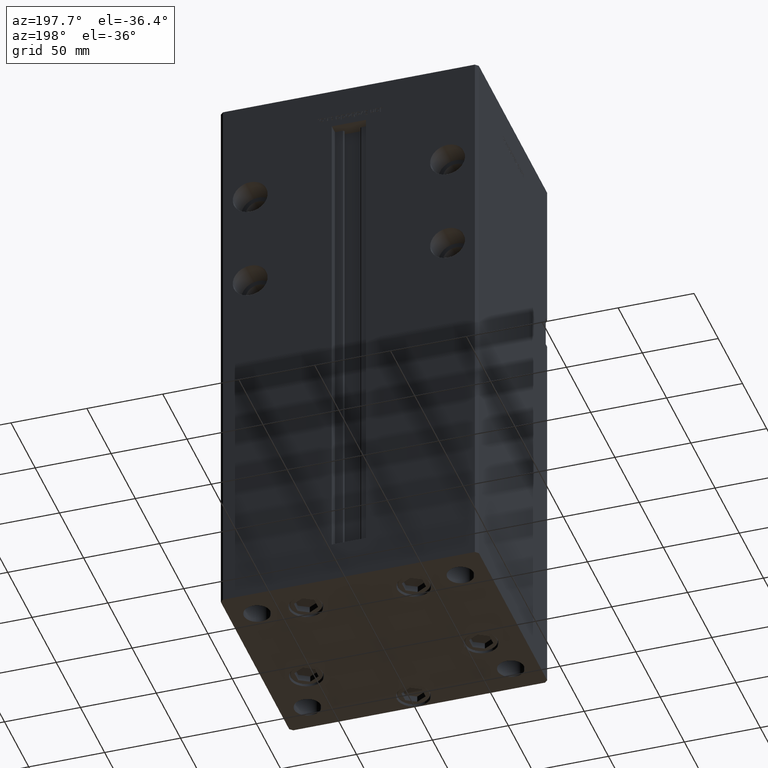
[diagram: clean part render]
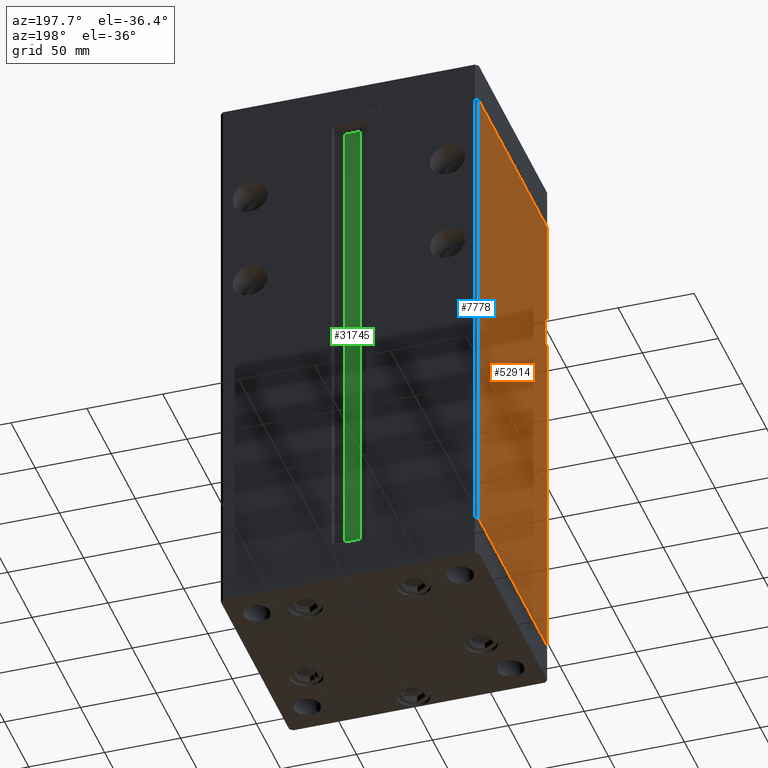
[diagram: same view with three faces highlighted in distinct colors, each labeled with its STEP entity id]
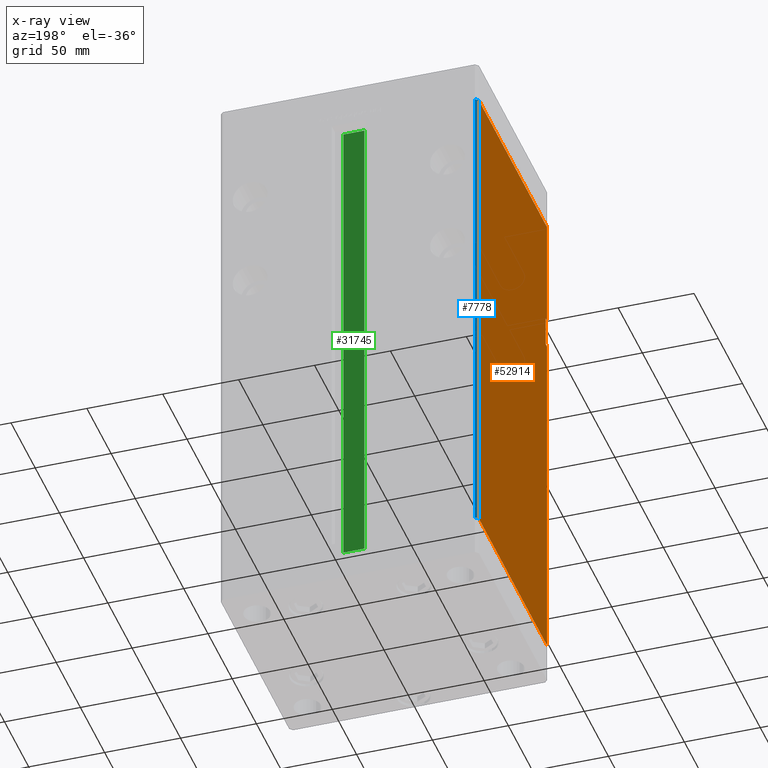
[diagram: x-ray of the same camera — body ghosted, the three highlighted faces saturated]
A machine part, auxiliary view with three faces highlighted in distinct colors.
The next image is the same camera in x-ray (body ghosted, the three faces saturated) — at least one of them is partly hidden behind the body in this view.
Their STEP definitions:

[orange] entity #52914 — the highlighted planar face has unit normal (1, 0, 0).
#284 = AXIS2_PLACEMENT_3D ( 'NONE', #33615, #25036, #29597 ) ;
#876 = FACE_OUTER_BOUND ( 'NONE', #17941, .T. ) ;
#911 = DIRECTION ( 'NONE',  ( 0.000000000000000000, 0.000000000000000000, -1.000000000000000000 ) ) ;
#956 = VECTOR ( 'NONE', #24842, 1000.000000000000000 ) ;
#1773 = ORIENTED_EDGE ( 'NONE', *, *, #51533, .F. ) ;
#1885 = CARTESIAN_POINT ( 'NONE',  ( -84.99999999999998579, -67.50000000000000000, 232.9999999999999716 ) ) ;
#1942 = ORIENTED_EDGE ( 'NONE', *, *, #13674, .F. ) ;
#2013 = EDGE_CURVE ( 'NONE', #45880, #40210, #29131, .T. ) ;
#2338 = EDGE_CURVE ( 'NONE', #6480, #29112, #49220, .T. ) ;
#3523 = CARTESIAN_POINT ( 'NONE',  ( -84.99999999999998579, -67.50000000000000000, 253.0000000000000000 ) ) ;
#4436 = CARTESIAN_POINT ( 'NONE',  ( -85.00000000000001421, 70.50000000000000000, 326.0000000000000000 ) ) ;
#4654 = CARTESIAN_POINT ( 'NONE',  ( -85.00000000000001421, 70.50000000000000000, 0.000000000000000000 ) ) ;
#5424 = PLANE ( 'NONE',  #284 ) ;
#5912 = VECTOR ( 'NONE', #29881, 1000.000000000000000 ) ;
#6480 = VERTEX_POINT ( 'NONE', #1885 ) ;
#6510 = CARTESIAN_POINT ( 'NONE',  ( -84.99999999999998579, -70.50000000000000000, 232.9999999999999716 ) ) ;
#7385 = CARTESIAN_POINT ( 'NONE',  ( -84.99999999999998579, -70.50000000000000000, 326.0000000000000000 ) ) ;
#9039 = VECTOR ( 'NONE', #52238, 1000.000000000000000 ) ;
#11453 = LINE ( 'NONE', #40470, #18377 ) ;
#11721 = EDGE_CURVE ( 'NONE', #35138, #44899, #11453, .T. ) ;
#13674 = EDGE_CURVE ( 'NONE', #17195, #6480, #27030, .T. ) ;
#13906 = ORIENTED_EDGE ( 'NONE', *, *, #11721, .F. ) ;
#15661 = EDGE_CURVE ( 'NONE', #29112, #34831, #43937, .T. ) ;
#16862 = LINE ( 'NONE', #22707, #30017 ) ;
#16981 = LINE ( 'NONE', #4654, #5912 ) ;
#17195 = VERTEX_POINT ( 'NONE', #3523 ) ;
#17941 = EDGE_LOOP ( 'NONE', ( #35677, #36464, #1942, #21518, #13906, #1773, #43120, #19599 ) ) ;
#18377 = VECTOR ( 'NONE', #48525, 1000.000000000000000 ) ;
#18807 = CARTESIAN_POINT ( 'NONE',  ( -84.99999999999998579, -70.50000000000000000, 326.0000000000000000 ) ) ;
#19599 = ORIENTED_EDGE ( 'NONE', *, *, #28961, .T. ) ;
#21037 = CARTESIAN_POINT ( 'NONE',  ( -84.99999999999998579, -67.50000000000000000, 253.0000000000000000 ) ) ;
#21518 = ORIENTED_EDGE ( 'NONE', *, *, #40668, .T. ) ;
#22707 = CARTESIAN_POINT ( 'NONE',  ( -84.99999999999998579, -67.50000000000000000, 253.0000000000000000 ) ) ;
#24842 = DIRECTION ( 'NONE',  ( -0.000000000000000000, -0.000000000000000000, -1.000000000000000000 ) ) ;
#25036 = DIRECTION ( 'NONE',  ( 1.000000000000000000, 1.968480540115525910E-16, -0.000000000000000000 ) ) ;
#26682 = VECTOR ( 'NONE', #40637, 1000.000000000000000 ) ;
#27030 = LINE ( 'NONE', #21037, #41618 ) ;
#28961 = EDGE_CURVE ( 'NONE', #40210, #34831, #16981, .T. ) ;
#29112 = VERTEX_POINT ( 'NONE', #6510 ) ;
#29131 = LINE ( 'NONE', #50076, #956 ) ;
#29597 = DIRECTION ( 'NONE',  ( -1.968480540115525910E-16, 1.000000000000000000, 0.000000000000000000 ) ) ;
#29881 = DIRECTION ( 'NONE',  ( 1.968480540115525664E-16, -1.000000000000000000, 0.000000000000000000 ) ) ;
#30017 = VECTOR ( 'NONE', #37290, 1000.000000000000000 ) ;
#30766 = CARTESIAN_POINT ( 'NONE',  ( -84.99999999999998579, -70.50000000000000000, 253.0000000000000000 ) ) ;
#33615 = CARTESIAN_POINT ( 'NONE',  ( -85.00000000000001421, 70.50000000000000000, 326.0000000000000000 ) ) ;
#34831 = VERTEX_POINT ( 'NONE', #42861 ) ;
#35138 = VERTEX_POINT ( 'NONE', #18807 ) ;
#35677 = ORIENTED_EDGE ( 'NONE', *, *, #15661, .F. ) ;
#36464 = ORIENTED_EDGE ( 'NONE', *, *, #2338, .F. ) ;
#37198 = DIRECTION ( 'NONE',  ( 1.968480540115525664E-16, -1.000000000000000000, 0.000000000000000000 ) ) ;
#37290 = DIRECTION ( 'NONE',  ( -0.000000000000000000, -1.000000000000000000, -0.000000000000000000 ) ) ;
#37399 = CARTESIAN_POINT ( 'NONE',  ( -84.99999999999998579, -67.50000000000000000, 232.9999999999999716 ) ) ;
#40210 = VERTEX_POINT ( 'NONE', #50585 ) ;
#40470 = CARTESIAN_POINT ( 'NONE',  ( -84.99999999999998579, -70.50000000000000000, 326.0000000000000000 ) ) ;
#40637 = DIRECTION ( 'NONE',  ( -0.000000000000000000, -1.000000000000000000, -0.000000000000000000 ) ) ;
#40668 = EDGE_CURVE ( 'NONE', #17195, #44899, #16862, .T. ) ;
#40970 = LINE ( 'NONE', #4436, #52557 ) ;
#41618 = VECTOR ( 'NONE', #911, 1000.000000000000000 ) ;
#42133 = CARTESIAN_POINT ( 'NONE',  ( -85.00000000000001421, 70.50000000000000000, 326.0000000000000000 ) ) ;
#42861 = CARTESIAN_POINT ( 'NONE',  ( -84.99999999999998579, -70.50000000000000000, 0.000000000000000000 ) ) ;
#43120 = ORIENTED_EDGE ( 'NONE', *, *, #2013, .T. ) ;
#43937 = LINE ( 'NONE', #7385, #9039 ) ;
#44899 = VERTEX_POINT ( 'NONE', #30766 ) ;
#45880 = VERTEX_POINT ( 'NONE', #42133 ) ;
#48525 = DIRECTION ( 'NONE',  ( -0.000000000000000000, -0.000000000000000000, -1.000000000000000000 ) ) ;
#49220 = LINE ( 'NONE', #37399, #26682 ) ;
#50076 = CARTESIAN_POINT ( 'NONE',  ( -85.00000000000001421, 70.50000000000000000, 326.0000000000000000 ) ) ;
#50585 = CARTESIAN_POINT ( 'NONE',  ( -85.00000000000001421, 70.50000000000000000, 0.000000000000000000 ) ) ;
#51533 = EDGE_CURVE ( 'NONE', #45880, #35138, #40970, .T. ) ;
#52238 = DIRECTION ( 'NONE',  ( -0.000000000000000000, -0.000000000000000000, -1.000000000000000000 ) ) ;
#52557 = VECTOR ( 'NONE', #37198, 1000.000000000000000 ) ;
#52914 = ADVANCED_FACE ( 'NONE', ( #876 ), #5424, .F. ) ;

[blue] entity #7778 — the highlighted planar face has unit normal (0.7071, -0.7071, 0).
#956 = VECTOR ( 'NONE', #24842, 1000.000000000000000 ) ;
#1642 = LINE ( 'NONE', #31160, #8510 ) ;
#2013 = EDGE_CURVE ( 'NONE', #45880, #40210, #29131, .T. ) ;
#2033 = VERTEX_POINT ( 'NONE', #49807 ) ;
#5873 = LINE ( 'NONE', #39448, #19474 ) ;
#6278 = AXIS2_PLACEMENT_3D ( 'NONE', #13883, #21960, #46390 ) ;
#7778 = ADVANCED_FACE ( 'NONE', ( #50962 ), #10396, .F. ) ;
#8510 = VECTOR ( 'NONE', #30357, 1000.000000000000114 ) ;
#10396 = PLANE ( 'NONE',  #6278 ) ;
#13581 = ORIENTED_EDGE ( 'NONE', *, *, #39371, .F. ) ;
#13883 = CARTESIAN_POINT ( 'NONE',  ( -83.00000000000001421, 72.50000000000000000, 326.0000000000000000 ) ) ;
#16271 = ORIENTED_EDGE ( 'NONE', *, *, #2013, .F. ) ;
#19474 = VECTOR ( 'NONE', #34883, 1000.000000000000000 ) ;
#19822 = ORIENTED_EDGE ( 'NONE', *, *, #37926, .T. ) ;
#21960 = DIRECTION ( 'NONE',  ( 0.7071067811865451302, -0.7071067811865500152, 0.000000000000000000 ) ) ;
#23572 = ORIENTED_EDGE ( 'NONE', *, *, #24057, .T. ) ;
#24057 = EDGE_CURVE ( 'NONE', #2033, #31774, #5873, .T. ) ;
#24842 = DIRECTION ( 'NONE',  ( -0.000000000000000000, -0.000000000000000000, -1.000000000000000000 ) ) ;
#26999 = CARTESIAN_POINT ( 'NONE',  ( -83.00000000000001421, 72.50000000000000000, 326.0000000000000000 ) ) ;
#29131 = LINE ( 'NONE', #50076, #956 ) ;
#30357 = DIRECTION ( 'NONE',  ( -0.7071067811865500152, -0.7071067811865451302, 0.000000000000000000 ) ) ;
#31160 = CARTESIAN_POINT ( 'NONE',  ( -83.00000000000001421, 72.50000000000000000, 0.000000000000000000 ) ) ;
#31546 = LINE ( 'NONE', #26999, #45480 ) ;
#31774 = VERTEX_POINT ( 'NONE', #33281 ) ;
#33281 = CARTESIAN_POINT ( 'NONE',  ( -83.00000000000001421, 72.50000000000000000, 0.000000000000000000 ) ) ;
#34883 = DIRECTION ( 'NONE',  ( -0.000000000000000000, -0.000000000000000000, -1.000000000000000000 ) ) ;
#37926 = EDGE_CURVE ( 'NONE', #31774, #40210, #1642, .T. ) ;
#39371 = EDGE_CURVE ( 'NONE', #2033, #45880, #31546, .T. ) ;
#39448 = CARTESIAN_POINT ( 'NONE',  ( -83.00000000000001421, 72.50000000000000000, 326.0000000000000000 ) ) ;
#40210 = VERTEX_POINT ( 'NONE', #50585 ) ;
#42133 = CARTESIAN_POINT ( 'NONE',  ( -85.00000000000001421, 70.50000000000000000, 326.0000000000000000 ) ) ;
#45480 = VECTOR ( 'NONE', #51441, 1000.000000000000114 ) ;
#45880 = VERTEX_POINT ( 'NONE', #42133 ) ;
#46359 = EDGE_LOOP ( 'NONE', ( #19822, #16271, #13581, #23572 ) ) ;
#46390 = DIRECTION ( 'NONE',  ( 0.7071067811865500152, 0.7071067811865451302, 0.000000000000000000 ) ) ;
#49807 = CARTESIAN_POINT ( 'NONE',  ( -83.00000000000001421, 72.50000000000000000, 326.0000000000000000 ) ) ;
#50076 = CARTESIAN_POINT ( 'NONE',  ( -85.00000000000001421, 70.50000000000000000, 326.0000000000000000 ) ) ;
#50585 = CARTESIAN_POINT ( 'NONE',  ( -85.00000000000001421, 70.50000000000000000, 0.000000000000000000 ) ) ;
#50962 = FACE_OUTER_BOUND ( 'NONE', #46359, .T. ) ;
#51441 = DIRECTION ( 'NONE',  ( -0.7071067811865500152, -0.7071067811865451302, 0.000000000000000000 ) ) ;

[green] entity #31745 — the highlighted planar face has unit normal (0, -1, 0).
#2266 = EDGE_CURVE ( 'NONE', #7140, #32216, #31773, .T. ) ;
#4735 = VECTOR ( 'NONE', #15041, 1000.000000000000000 ) ;
#7140 = VERTEX_POINT ( 'NONE', #26718 ) ;
#9630 = PLANE ( 'NONE',  #17120 ) ;
#11344 = CARTESIAN_POINT ( 'NONE',  ( -6.876153656360468602, 61.99999999999985789, 0.000000000000000000 ) ) ;
#14030 = ORIENTED_EDGE ( 'NONE', *, *, #19546, .F. ) ;
#14368 = EDGE_CURVE ( 'NONE', #20920, #32216, #51845, .T. ) ;
#14447 = CARTESIAN_POINT ( 'NONE',  ( 6.876153656360468602, 61.99999999999985789, 0.000000000000000000 ) ) ;
#15041 = DIRECTION ( 'NONE',  ( -1.000000000000000000, 0.000000000000000000, 0.000000000000000000 ) ) ;
#17120 = AXIS2_PLACEMENT_3D ( 'NONE', #34342, #29527, #22004 ) ;
#17934 = DIRECTION ( 'NONE',  ( 1.000000000000000000, -0.000000000000000000, -0.000000000000000000 ) ) ;
#19546 = EDGE_CURVE ( 'NONE', #7140, #45121, #38898, .T. ) ;
#20920 = VERTEX_POINT ( 'NONE', #24338 ) ;
#22004 = DIRECTION ( 'NONE',  ( 0.000000000000000000, 0.000000000000000000, -1.000000000000000000 ) ) ;
#22845 = CARTESIAN_POINT ( 'NONE',  ( 0.000000000000000000, 61.99999999999985789, 326.0000000000000000 ) ) ;
#23333 = CARTESIAN_POINT ( 'NONE',  ( 6.876153656360468602, 61.99999999999985789, 0.000000000000000000 ) ) ;
#23779 = ORIENTED_EDGE ( 'NONE', *, *, #14368, .F. ) ;
#24338 = CARTESIAN_POINT ( 'NONE',  ( 6.876153656360468602, 61.99999999999985789, 326.0000000000000000 ) ) ;
#25233 = FACE_OUTER_BOUND ( 'NONE', #40671, .T. ) ;
#25694 = CARTESIAN_POINT ( 'NONE',  ( -6.876153656360468602, 61.99999999999985789, 326.0000000000000000 ) ) ;
#26718 = CARTESIAN_POINT ( 'NONE',  ( -6.876153656360468602, 61.99999999999985789, 0.000000000000000000 ) ) ;
#29386 = ORIENTED_EDGE ( 'NONE', *, *, #31803, .F. ) ;
#29527 = DIRECTION ( 'NONE',  ( 0.000000000000000000, -1.000000000000000000, -0.000000000000000000 ) ) ;
#30857 = LINE ( 'NONE', #23333, #48750 ) ;
#30969 = VECTOR ( 'NONE', #40368, 1000.000000000000000 ) ;
#31745 = ADVANCED_FACE ( 'NONE', ( #25233 ), #9630, .F. ) ;
#31773 = LINE ( 'NONE', #11344, #30969 ) ;
#31803 = EDGE_CURVE ( 'NONE', #45121, #20920, #30857, .T. ) ;
#32216 = VERTEX_POINT ( 'NONE', #25694 ) ;
#34342 = CARTESIAN_POINT ( 'NONE',  ( 6.876153656360468602, 61.99999999999985789, 0.000000000000000000 ) ) ;
#35160 = DIRECTION ( 'NONE',  ( -0.000000000000000000, -0.000000000000000000, 1.000000000000000000 ) ) ;
#38898 = LINE ( 'NONE', #14447, #50202 ) ;
#40368 = DIRECTION ( 'NONE',  ( -0.000000000000000000, -0.000000000000000000, 1.000000000000000000 ) ) ;
#40671 = EDGE_LOOP ( 'NONE', ( #29386, #14030, #43647, #23779 ) ) ;
#43647 = ORIENTED_EDGE ( 'NONE', *, *, #2266, .T. ) ;
#45121 = VERTEX_POINT ( 'NONE', #53010 ) ;
#48750 = VECTOR ( 'NONE', #35160, 1000.000000000000000 ) ;
#50202 = VECTOR ( 'NONE', #17934, 1000.000000000000000 ) ;
#51845 = LINE ( 'NONE', #22845, #4735 ) ;
#53010 = CARTESIAN_POINT ( 'NONE',  ( 6.876153656360468602, 61.99999999999985789, 0.000000000000000000 ) ) ;